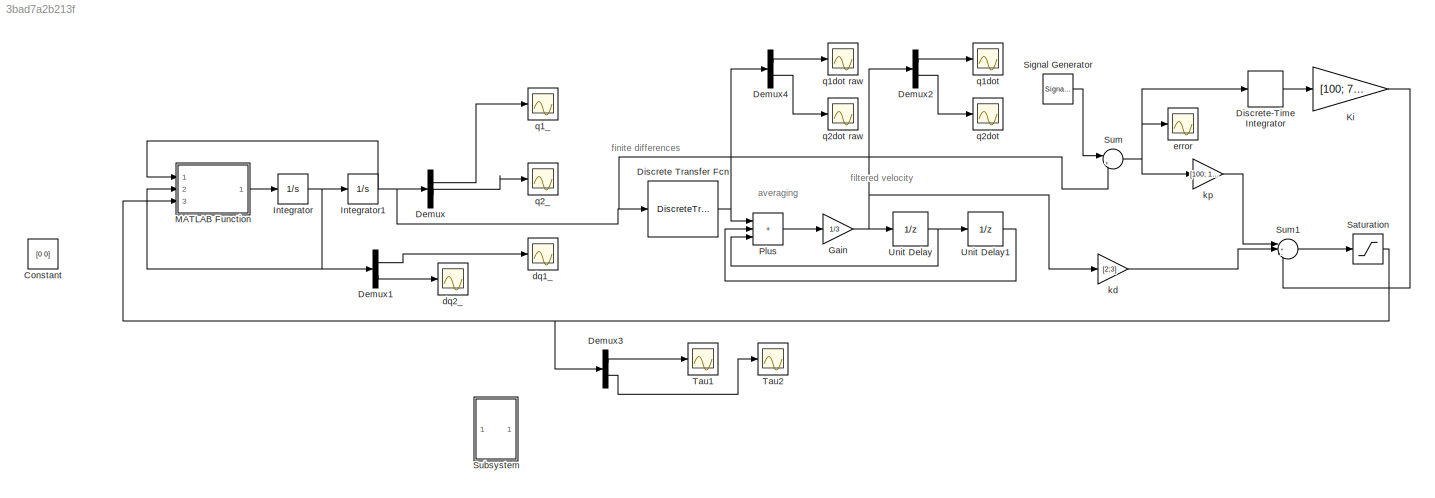
MODEL slx_3bad7a2b213f
KIND model
CONFIG AbsTol = 1e-6
CONFIG EnableMultiTasking = off
CONFIG FixedStep = auto
CONFIG MaxStep = auto
CONFIG MinStep = auto
CONFIG RelTol = 1e-6
CONFIG SampleTimeConstraint = Unconstrained
CONFIG SolverName = ode45
CONFIG StartTime = 0.0
CONFIG StopTime = 10
BLOCK [Constant] Constant
  Value = [0 0]
BLOCK [Demux] Demux
  Outputs = 2
  Ports = [1, 2]
BLOCK [Demux] Demux1
  Outputs = 2
  Ports = [1, 2]
BLOCK [Demux] Demux2
  Outputs = 2
  Ports = [1, 2]
BLOCK [Demux] Demux3
  Outputs = 2
  Ports = [1, 2]
BLOCK [Demux] Demux4
  Outputs = 2
  Ports = [1, 2]
BLOCK [DiscreteTransferFcn] Discrete Transfer Fcn
  Denominator = [0.001 0]
  InputPortMap = u0
  Numerator = [1 -1]
  Ports = [1, 1]
  SampleTime = 0.001
BLOCK [DiscreteIntegrator] Discrete-Time Integrator
  ICPrevOutput = DiscIntNeverNeededParam
  ICPrevScaledInput = DiscIntNeverNeededParam
  InitialConditionSetting = Auto
  Ports = [1, 1]
  SampleTime = 0.001
BLOCK [Gain] Gain
  Gain = 1/3
BLOCK [Integrator] Integrator
  InitialCondition = [0;0]
  Ports = [1, 1]
BLOCK [Integrator] Integrator1
  InitialCondition = [0;0]
  Ports = [1, 1]
BLOCK [Gain] Ki
  Gain = [100; 70]
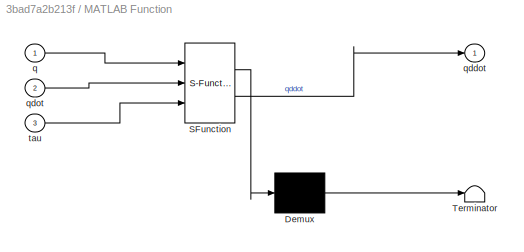
BLOCK [SubSystem] MATLAB Function
  ErrorFcn = Stateflow.Translate.translate
  PermitHierarchicalResolution = ExplicitOnly
  Ports = [3, 1]
  RequestExecContextInheritance = off
  SFBlockType = MATLAB Function
  TreatAsAtomicUnit = on
BLOCK [Demux] MATLAB Function/ Demux 
  Outputs = 1
  Ports = [1, 1]
BLOCK [S-Function] MATLAB Function/ SFunction 
  EnableBusSupport = on
  FunctionName = sf_sfun
  PortCounts = [3 2]
  Ports = [3, 2]
  SFcnIsStateOwnerBlock = off
  SFunctionDeploymentMode = off
  Tag = Stateflow S-Function 2
BLOCK [Terminator] MATLAB Function/ Terminator 
BLOCK [Inport] MATLAB Function/q
BLOCK [Outport] MATLAB Function/qddot
BLOCK [Inport] MATLAB Function/qdot
  Port = 2
BLOCK [Inport] MATLAB Function/tau
  Port = 3
BLOCK [Sum] Plus
  IconShape = rectangular
  Inputs = +++
  Ports = [3, 1]
BLOCK [Saturate] Saturation
  LowerLimit = -5
  UpperLimit = 5
BLOCK [SignalGenerator] Signal Generator
  Amplitude = .1
  Frequency = .25
  Ports = [0, 1]
  WaveForm = square
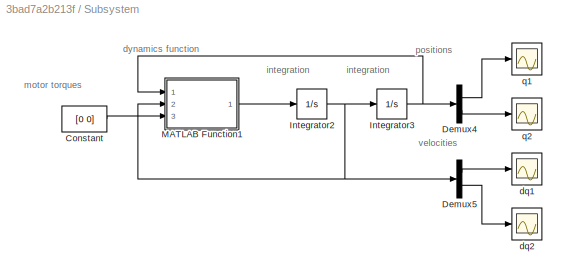
BLOCK [SubSystem] Subsystem
  Commented = on
  Ports = []
  RequestExecContextInheritance = off
BLOCK [Constant] Subsystem/Constant
  Value = [0 0]
BLOCK [Demux] Subsystem/Demux4
  Outputs = 2
  Ports = [1, 2]
BLOCK [Demux] Subsystem/Demux5
  Outputs = 2
  Ports = [1, 2]
BLOCK [Integrator] Subsystem/Integrator2
  InitialCondition = [0;0]
  Ports = [1, 1]
BLOCK [Integrator] Subsystem/Integrator3
  InitialCondition = [0;0]
  Ports = [1, 1]
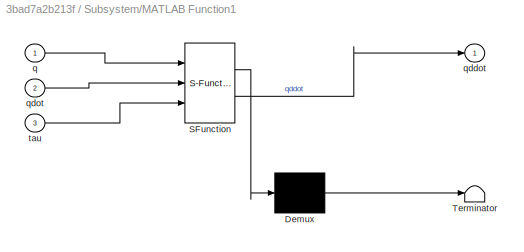
BLOCK [SubSystem] Subsystem/MATLAB Function1
  ErrorFcn = Stateflow.Translate.translate
  PermitHierarchicalResolution = ExplicitOnly
  Ports = [3, 1]
  RequestExecContextInheritance = off
  SFBlockType = MATLAB Function
  TreatAsAtomicUnit = on
BLOCK [Demux] Subsystem/MATLAB Function1/ Demux 
  Outputs = 1
  Ports = [1, 1]
BLOCK [S-Function] Subsystem/MATLAB Function1/ SFunction 
  EnableBusSupport = on
  FunctionName = sf_sfun
  PortCounts = [3 2]
  Ports = [3, 2]
  SFcnIsStateOwnerBlock = off
  SFunctionDeploymentMode = off
  Tag = Stateflow S-Function 1
BLOCK [Terminator] Subsystem/MATLAB Function1/ Terminator 
BLOCK [Inport] Subsystem/MATLAB Function1/q
BLOCK [Outport] Subsystem/MATLAB Function1/qddot
BLOCK [Inport] Subsystem/MATLAB Function1/qdot
  Port = 2
BLOCK [Inport] Subsystem/MATLAB Function1/tau
  Port = 3
BLOCK [Scope] Subsystem/dq1
  Floating = off
  NumInputPorts = 1
  Ports = [1]
  ScopeSpecificationString = Simulink.scopes.TimeScopeBlockCfg('CurrentConfiguration', extmgr.ConfigurationSet(extmgr.Configuration('Core','General UI',true,'FigureColor',[1 1 1]),extmgr.Configuration('Core','Source UI',true),extmgr.Configuration('Sources','WiredSimulink',true,'DataLoggingVariableName','ScopeData1'),extmgr.Configuration('Visuals','Time Domain',true,'SerializedDisplays',{struct('MinYLimReal','-14.59123','MaxYL...<+1570ch>
BLOCK [Scope] Subsystem/dq2
  Floating = off
  NumInputPorts = 1
  Ports = [1]
  ScopeSpecificationString = Simulink.scopes.TimeScopeBlockCfg('CurrentConfiguration', extmgr.ConfigurationSet(extmgr.Configuration('Core','General UI',true,'FigureColor',[1 1 1]),extmgr.Configuration('Core','Source UI',true),extmgr.Configuration('Sources','WiredSimulink',true,'DataLoggingVariableName','ScopeData2'),extmgr.Configuration('Visuals','Time Domain',true,'SerializedDisplays',{struct('MinYLimReal','-21.42706','MaxYL...<+1572ch>
BLOCK [Scope] Subsystem/q1
  Floating = off
  NumInputPorts = 1
  Ports = [1]
  ScopeSpecificationString = Simulink.scopes.TimeScopeBlockCfg('CurrentConfiguration', extmgr.ConfigurationSet(extmgr.Configuration('Core','General UI',true,'FigureColor',[1 1 1]),extmgr.Configuration('Core','Source UI',true),extmgr.Configuration('Sources','WiredSimulink',true,'DataLoggingVariableName','ScopeData3'),extmgr.Configuration('Visuals','Time Domain',true,'SerializedDisplays',{struct('MinYLimReal','-23.15847','MaxYL...<+1645ch>
BLOCK [Scope] Subsystem/q2
  Floating = off
  NumInputPorts = 1
  Ports = [1]
  ScopeSpecificationString = Simulink.scopes.TimeScopeBlockCfg('CurrentConfiguration', extmgr.ConfigurationSet(extmgr.Configuration('Core','General UI',true,'FigureColor',[1 1 1]),extmgr.Configuration('Core','Source UI',true),extmgr.Configuration('Sources','WiredSimulink',true,'DataLoggingVariableName','ScopeData4'),extmgr.Configuration('Visuals','Time Domain',true,'SerializedDisplays',{struct('MinYLimReal','-46.25103','MaxYL...<+1593ch>
BLOCK [Sum] Sum
  Inputs = |+-
  Ports = [2, 1]
BLOCK [Sum] Sum1
  Inputs = |+-+
  Ports = [3, 1]
BLOCK [Scope] Tau1
  Floating = off
  NumInputPorts = 1
  Ports = [1]
  ScopeSpecificationString = Simulink.scopes.TimeScopeBlockCfg('CurrentConfiguration', extmgr.ConfigurationSet(extmgr.Configuration('Core','General UI',true),extmgr.Configuration('Core','Source UI',true),extmgr.Configuration('Sources','WiredSimulink',true,'DataLoggingVariableName','ScopeData7'),extmgr.Configuration('Visuals','Time Domain',true,'SerializedDisplays',{struct('MinYLimReal','0.34617','MaxYLimReal','4.36503','YLabe...<+1437ch>
BLOCK [Scope] Tau2
  Floating = off
  NumInputPorts = 1
  Ports = [1]
  ScopeSpecificationString = Simulink.scopes.TimeScopeBlockCfg('CurrentConfiguration', extmgr.ConfigurationSet(extmgr.Configuration('Core','General UI',true),extmgr.Configuration('Core','Source UI',true),extmgr.Configuration('Sources','WiredSimulink',true,'DataLoggingVariableName','ScopeData8'),extmgr.Configuration('Visuals','Time Domain',true,'SerializedDisplays',{struct('MinYLimReal','-6.00000','MaxYLimReal','-4.00000','YLa...<+1442ch>
BLOCK [UnitDelay] Unit Delay
  HasFrameUpgradeWarning = on
  SampleTime = 0.001
BLOCK [UnitDelay] Unit Delay1
  HasFrameUpgradeWarning = on
  SampleTime = 0.001
BLOCK [Scope] dq1_
  Floating = off
  NumInputPorts = 1
  Ports = [1]
  ScopeSpecificationString = Simulink.scopes.TimeScopeBlockCfg('CurrentConfiguration', extmgr.ConfigurationSet(extmgr.Configuration('Core','General UI',true),extmgr.Configuration('Core','Source UI',true),extmgr.Configuration('Sources','WiredSimulink',true,'DataLoggingVariableName','ScopeData2'),extmgr.Configuration('Visuals','Time Domain',true,'SerializedDisplays',{struct('MinYLimReal','-6.69508','MaxYLimReal','6.77095','YLab...<+1422ch>
BLOCK [Scope] dq2_
  Floating = off
  NumInputPorts = 1
  Ports = [1]
  ScopeSpecificationString = Simulink.scopes.TimeScopeBlockCfg('CurrentConfiguration', extmgr.ConfigurationSet(extmgr.Configuration('Core','General UI',true),extmgr.Configuration('Core','Source UI',true),extmgr.Configuration('Sources','WiredSimulink',true,'DataLoggingVariableName','ScopeData3'),extmgr.Configuration('Visuals','Time Domain',true,'SerializedDisplays',{struct('MinYLimReal','-9.07656','MaxYLimReal','9.2961','YLabe...<+1418ch>
BLOCK [Scope] error
  Floating = off
  NumInputPorts = 1
  Ports = [1]
  ScopeSpecificationString = Simulink.scopes.TimeScopeBlockCfg('CurrentConfiguration', extmgr.ConfigurationSet(extmgr.Configuration('Core','General UI',true),extmgr.Configuration('Core','Source UI',true),extmgr.Configuration('Sources','WiredSimulink',true,'DataLoggingVariableName','ScopeData6'),extmgr.Configuration('Visuals','Time Domain',true,'SerializedDisplays',{struct('MinYLimReal','-0.25147','MaxYLimReal','0.2513','YLabe...<+1399ch>
BLOCK [Gain] kd
  Gain = [2;3]
BLOCK [Gain] kp
  Gain = [100; 150]
BLOCK [Scope] q1_
  Floating = off
  NumInputPorts = 1
  Ports = [1]
  ScopeSpecificationString = Simulink.scopes.TimeScopeBlockCfg('CurrentConfiguration', extmgr.ConfigurationSet(extmgr.Configuration('Core','General UI',true),extmgr.Configuration('Core','Source UI',true),extmgr.Configuration('Sources','WiredSimulink',true,'DataLoggingVariableName','ScopeData1'),extmgr.Configuration('Visuals','Time Domain',true,'SerializedDisplays',{struct('MinYLimReal','-0.12687','MaxYLimReal','0.12687','YLab...<+1495ch>
BLOCK [Scope] q1dot
  Floating = off
  NumInputPorts = 1
  Ports = [1]
  ScopeSpecificationString = Simulink.scopes.TimeScopeBlockCfg('CurrentConfiguration', extmgr.ConfigurationSet(extmgr.Configuration('Core','General UI',true),extmgr.Configuration('Core','Source UI',true),extmgr.Configuration('Sources','WiredSimulink',true,'DataLoggingVariableName','ScopeData4'),extmgr.Configuration('Visuals','Time Domain',true,'SerializedDisplays',{struct('MinYLimReal','-11.16999','MaxYLimReal','11.86727','YL...<+1447ch>
BLOCK [Scope] q1dot raw
  Floating = off
  NumInputPorts = 1
  Ports = [1]
  ScopeSpecificationString = Simulink.scopes.TimeScopeBlockCfg('CurrentConfiguration', extmgr.ConfigurationSet(extmgr.Configuration('Core','General UI',true),extmgr.Configuration('Core','Source UI',true),extmgr.Configuration('Sources','WiredSimulink',true,'DataLoggingVariableName','ScopeData5'),extmgr.Configuration('Visuals','Time Domain',true,'SerializedDisplays',{struct('MinYLimReal','-11.17293','MaxYLimReal','11.86937','YL...<+1447ch>
BLOCK [Scope] q2_
  Floating = off
  NumInputPorts = 1
  Ports = [1]
  ScopeSpecificationString = Simulink.scopes.TimeScopeBlockCfg('CurrentConfiguration', extmgr.ConfigurationSet(extmgr.Configuration('Core','General UI',true,'FigureColor',[1 1 1]),extmgr.Configuration('Core','Source UI',true),extmgr.Configuration('Sources','WiredSimulink',true),extmgr.Configuration('Visuals','Time Domain',true,'SerializedDisplays',{struct('MinYLimReal','-0.11918','MaxYLimReal','0.13081','YLabelReal','','MinYL...<+1826ch>
BLOCK [Scope] q2dot
  Floating = off
  NumInputPorts = 1
  Ports = [1]
  ScopeSpecificationString = Simulink.scopes.TimeScopeBlockCfg('CurrentConfiguration', extmgr.ConfigurationSet(extmgr.Configuration('Core','General UI',true),extmgr.Configuration('Core','Source UI',true),extmgr.Configuration('Sources','WiredSimulink',true,'DataLoggingVariableName','ScopeData5'),extmgr.Configuration('Visuals','Time Domain',true,'SerializedDisplays',{struct('MinYLimReal','-8.31025','MaxYLimReal','8.49001','YLab...<+1422ch>
BLOCK [Scope] q2dot raw
  Floating = off
  NumInputPorts = 1
  Ports = [1]
  ScopeSpecificationString = Simulink.scopes.TimeScopeBlockCfg('CurrentConfiguration', extmgr.ConfigurationSet(extmgr.Configuration('Core','General UI',true),extmgr.Configuration('Core','Source UI',true),extmgr.Configuration('Sources','WiredSimulink',true,'DataLoggingVariableName','ScopeData6'),extmgr.Configuration('Visuals','Time Domain',true,'SerializedDisplays',{struct('MinYLimReal','-2.84913','MaxYLimReal','2.87831','YLab...<+1422ch>
ANNOTATION (root): averaging
ANNOTATION (root): filtered velocity
ANNOTATION (root): finite differences
ANNOTATION Subsystem: dynamics function
ANNOTATION Subsystem: integration
ANNOTATION Subsystem: motor torques
ANNOTATION Subsystem: positions
ANNOTATION Subsystem: velocities
LINE Demux1:1 -> dq1_:1
LINE Demux1:2 -> dq2_:1
LINE Demux2:1 -> q1dot:1
LINE Demux2:2 -> q2dot:1
LINE Demux3:1 -> Tau1:1
LINE Demux3:2 -> Tau2:1
LINE Demux4:1 -> q1dot raw:1
LINE Demux4:2 -> q2dot raw:1
LINE Demux:1 -> q1_:1
LINE Demux:2 -> q2_:1
NET Discrete Transfer Fcn:1 -> Demux4:1, Plus:1
LINE Discrete-Time Integrator:1 -> Ki:1
NET Gain:1 -> Demux2:1, Unit Delay:1, kd:1
NET Integrator1:1 -> Demux:1, Discrete Transfer Fcn:1, MATLAB Function:1, Sum:2
NET Integrator:1 -> Demux1:1, Integrator1:1, MATLAB Function:2
LINE Ki:1 -> Sum1:3
LINE MATLAB Function:1 -> Integrator:1
LINE Plus:1 -> Gain:1
NET Saturation:1 -> Demux3:1, MATLAB Function:3
LINE Signal Generator:1 -> Sum:1
LINE Subsystem/Constant:1 -> Subsystem/MATLAB Function1:3
LINE Subsystem/Demux4:1 -> Subsystem/q1:1
LINE Subsystem/Demux4:2 -> Subsystem/q2:1
LINE Subsystem/Demux5:1 -> Subsystem/dq1:1
LINE Subsystem/Demux5:2 -> Subsystem/dq2:1
NET Subsystem/Integrator2:1 -> Subsystem/Demux5:1, Subsystem/Integrator3:1, Subsystem/MATLAB Function1:2
NET Subsystem/Integrator3:1 -> Subsystem/Demux4:1, Subsystem/MATLAB Function1:1
LINE Subsystem/MATLAB Function1:1 -> Subsystem/Integrator2:1
LINE Sum1:1 -> Saturation:1
NET Sum:1 -> Discrete-Time Integrator:1, error:1, kp:1
LINE Unit Delay1:1 -> Plus:2
NET Unit Delay:1 -> Plus:3, Unit Delay1:1
LINE kd:1 -> Sum1:2
LINE kp:1 -> Sum1:1
note: NET lines group one-source signal fan-out (src -> all destinations, sorted); 1:1 wires keep LINE
CHART MATLAB Function states=1 transitions=1
  STATE_LABEL 'eML_blk_kernel()'
  STATE_LABEL 'SCRIPT:\nfunction qddot = fcn(q, qdot, tau)\nth2m = q(1);\nth3m = q(2);\nth2mdot = qdot(1);\nth3mdot = qdot(2);\ng = 9.8;\n\n\n%%p1 = pars(1);\n%%p2 = pars(2);\n%%p3 = pars(3);\n%%p4 = pars(4);\n%%p5 = pars(5);\n\np1 = 0.0300;\np2 = 0.0128;\np3 = 0.0076;\np4 = 0.0753;\np5 = 0.0298;\n\nD = [\n[p1 -p3*sin(th3m - th2m)];\n[-p3*sin(th3m - th2m) p2];\n];\n\nC = [\n[0 -p3*cos(th3m - th2m)*th3mdot];\n[p3*cos(th3m - th2m)*th2mdot 0]...<+113ch>'
CHART Subsystem/MATLAB Function1 states=1 transitions=1
  STATE_LABEL 'eML_blk_kernel()'
  STATE_LABEL 'SCRIPT:\nfunction qddot = fcn(q, qdot, tau)\nth2m = q(1);\nth3m = q(2);\nth2mdot = qdot(1);\nth3mdot = qdot(2);\ng = 9.8; %acceleration due to gravity\n\n% given parameters for equations of motion\np1 = 0.0300;\np2 = 0.0128;\np3 = 0.0076;\np4 = 0.0753;\np5 = 0.0298;\n\n% Mass matrix\nD = [\n[p1 -p3*sin(th3m - th2m)];\n[-p3*sin(th3m - th2m) p2];\n];\n\n%Coriolis matrix\nC = [\n[0 -p3*cos(th3m - th2m)*th3mdot];\n[p3*cos(th...<+199ch>'
CHART  states=0 transitions=0
CHART  states=0 transitions=0
